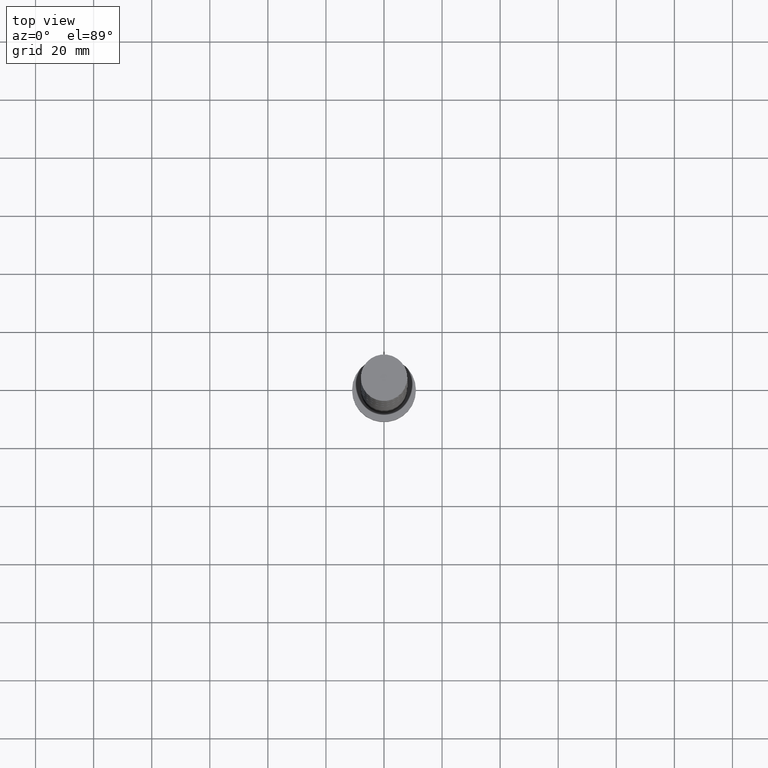
[diagram: clean part render]
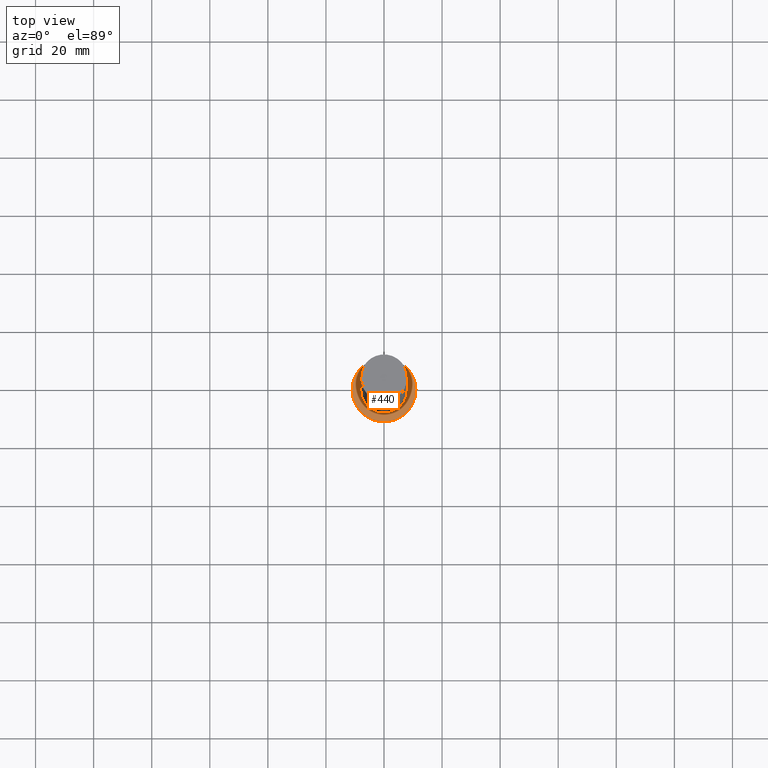
[diagram: same view with one face highlighted and labeled with its STEP entity id]
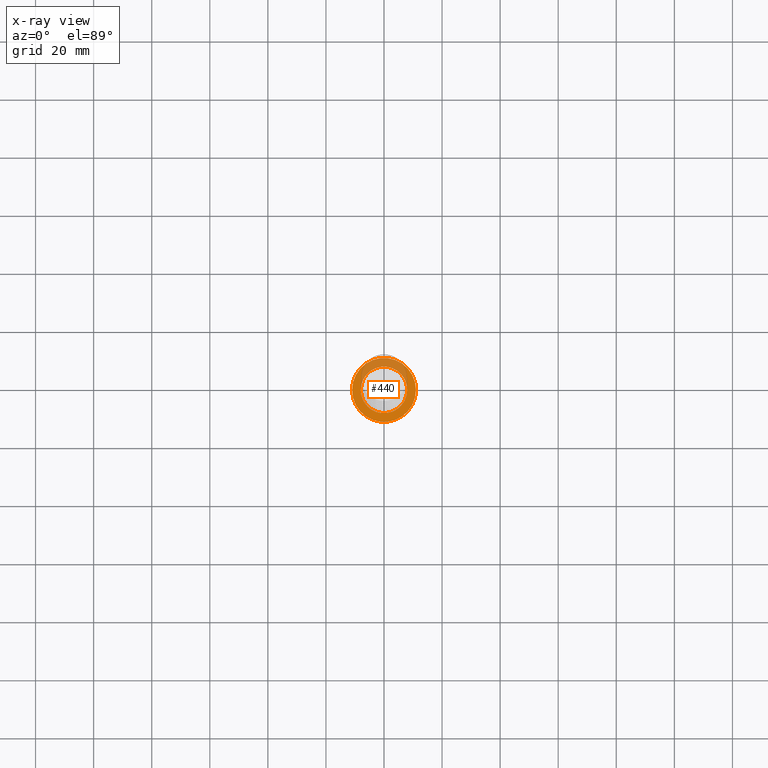
[diagram: x-ray of the same camera — body ghosted, the highlighted face saturated]
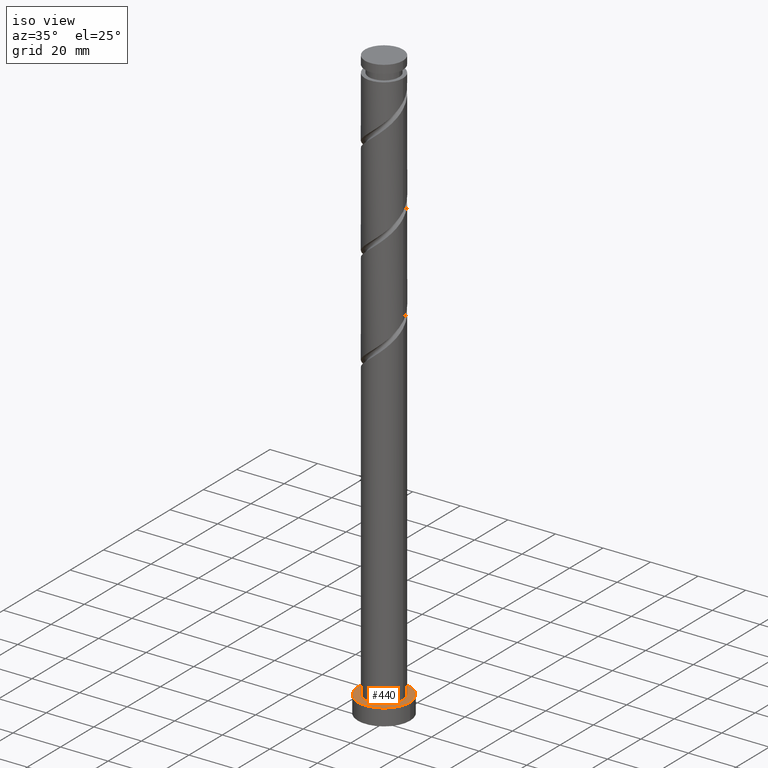
[diagram: same view with one face highlighted and labeled with its STEP entity id]
A machine part, top view. The second image highlights one B-rep face of the part: STEP entity #440.
The next image is the same camera in x-ray: the body ghosted, the highlighted face saturated — about 31% of this face is hidden behind the body in this view.
A second angle (iso view) of the same face is appended — the face is thin or edge-on in the first view.
In plain terms, the highlighted planar face has unit normal (0, 0, 1).
Its self-contained STEP definition (entity closure, byte-faithful):
#29 = DIRECTION ( 'NONE',  ( 0.000000000000000000, 0.000000000000000000, 1.000000000000000000 ) ) ;
#44 = AXIS2_PLACEMENT_3D ( 'NONE', #1091, #1353, #488 ) ;
#98 = CARTESIAN_POINT ( 'NONE',  ( 0.000000000000000000, 0.000000000000000000, 7.000000000000000000 ) ) ;
#114 = ORIENTED_EDGE ( 'NONE', *, *, #1595, .T. ) ;
#236 = CARTESIAN_POINT ( 'NONE',  ( -11.00000000000000000, 0.000000000000000000, 7.000000000000000000 ) ) ;
#249 = EDGE_CURVE ( 'NONE', #875, #654, #706, .T. ) ;
#324 = CARTESIAN_POINT ( 'NONE',  ( 0.000000000000000000, 0.000000000000000000, 7.000000000000000000 ) ) ;
#374 = CARTESIAN_POINT ( 'NONE',  ( 11.00000000000000000, 1.347111479062088405E-15, 7.000000000000000000 ) ) ;
#391 = VERTEX_POINT ( 'NONE', #374 ) ;
#401 = EDGE_LOOP ( 'NONE', ( #1659, #114 ) ) ;
#412 = AXIS2_PLACEMENT_3D ( 'NONE', #324, #29, #602 ) ;
#440 = ADVANCED_FACE ( 'NONE', ( #836, #1447 ), #779, .T. ) ;
#488 = DIRECTION ( 'NONE',  ( 1.000000000000000000, 0.000000000000000000, 0.000000000000000000 ) ) ;
#522 = AXIS2_PLACEMENT_3D ( 'NONE', #1813, #1523, #1823 ) ;
#602 = DIRECTION ( 'NONE',  ( 1.000000000000000000, 0.000000000000000000, 0.000000000000000000 ) ) ;
#654 = VERTEX_POINT ( 'NONE', #1414 ) ;
#706 = CIRCLE ( 'NONE', #522, 8.000000000000000000 ) ;
#760 = EDGE_LOOP ( 'NONE', ( #1232, #1092 ) ) ;
#779 = PLANE ( 'NONE',  #860 ) ;
#836 = FACE_BOUND ( 'NONE', #760, .T. ) ;
#860 = AXIS2_PLACEMENT_3D ( 'NONE', #98, #1375, #1075 ) ;
#875 = VERTEX_POINT ( 'NONE', #1190 ) ;
#1075 = DIRECTION ( 'NONE',  ( 1.000000000000000000, 0.000000000000000000, -0.000000000000000000 ) ) ;
#1091 = CARTESIAN_POINT ( 'NONE',  ( 0.000000000000000000, 0.000000000000000000, 7.000000000000000000 ) ) ;
#1092 = ORIENTED_EDGE ( 'NONE', *, *, #249, .F. ) ;
#1116 = DIRECTION ( 'NONE',  ( 0.000000000000000000, 0.000000000000000000, 1.000000000000000000 ) ) ;
#1136 = DIRECTION ( 'NONE',  ( 1.000000000000000000, 0.000000000000000000, 0.000000000000000000 ) ) ;
#1161 = CIRCLE ( 'NONE', #44, 11.00000000000000000 ) ;
#1167 = VERTEX_POINT ( 'NONE', #236 ) ;
#1190 = CARTESIAN_POINT ( 'NONE',  ( 8.000000000000000000, 9.797174393178825657E-16, 7.000000000000000000 ) ) ;
#1232 = ORIENTED_EDGE ( 'NONE', *, *, #1484, .F. ) ;
#1275 = EDGE_CURVE ( 'NONE', #1167, #391, #1829, .T. ) ;
#1353 = DIRECTION ( 'NONE',  ( 0.000000000000000000, 0.000000000000000000, 1.000000000000000000 ) ) ;
#1368 = AXIS2_PLACEMENT_3D ( 'NONE', #1548, #1116, #1136 ) ;
#1375 = DIRECTION ( 'NONE',  ( 0.000000000000000000, 0.000000000000000000, 1.000000000000000000 ) ) ;
#1414 = CARTESIAN_POINT ( 'NONE',  ( -8.000000000000000000, 0.000000000000000000, 7.000000000000000000 ) ) ;
#1447 = FACE_OUTER_BOUND ( 'NONE', #401, .T. ) ;
#1484 = EDGE_CURVE ( 'NONE', #654, #875, #1769, .T. ) ;
#1523 = DIRECTION ( 'NONE',  ( 0.000000000000000000, 0.000000000000000000, 1.000000000000000000 ) ) ;
#1548 = CARTESIAN_POINT ( 'NONE',  ( 0.000000000000000000, 0.000000000000000000, 7.000000000000000000 ) ) ;
#1595 = EDGE_CURVE ( 'NONE', #391, #1167, #1161, .T. ) ;
#1659 = ORIENTED_EDGE ( 'NONE', *, *, #1275, .T. ) ;
#1769 = CIRCLE ( 'NONE', #412, 8.000000000000000000 ) ;
#1813 = CARTESIAN_POINT ( 'NONE',  ( 0.000000000000000000, 0.000000000000000000, 7.000000000000000000 ) ) ;
#1823 = DIRECTION ( 'NONE',  ( 1.000000000000000000, 0.000000000000000000, 0.000000000000000000 ) ) ;
#1829 = CIRCLE ( 'NONE', #1368, 11.00000000000000000 ) ;